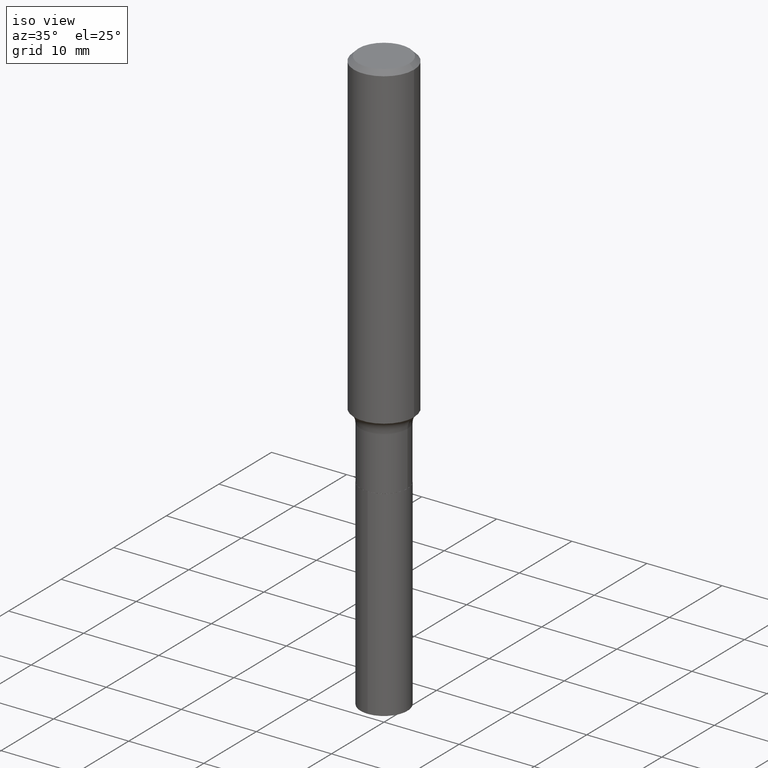
[diagram: clean part render]
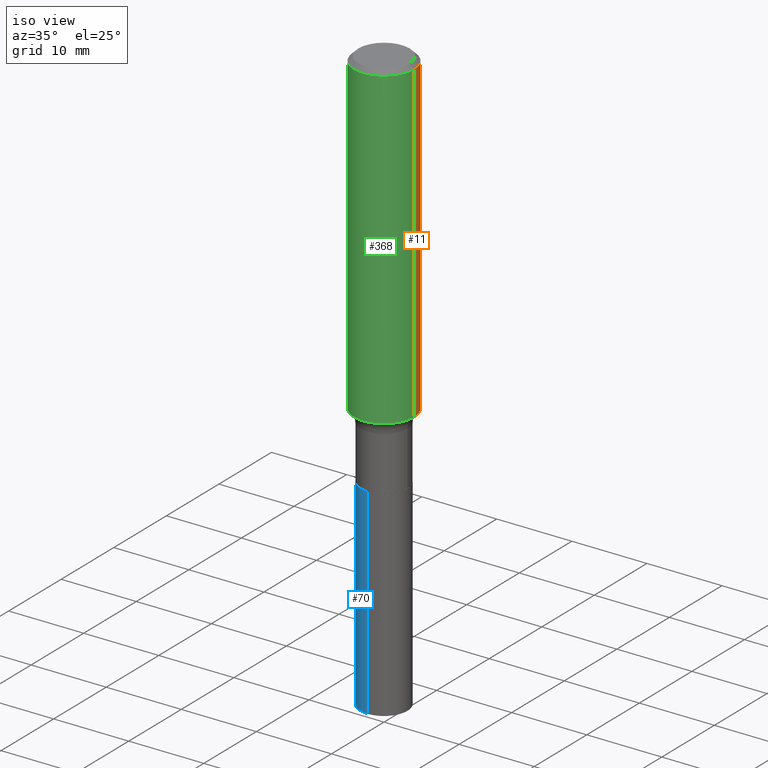
[diagram: same view with three faces highlighted in distinct colors, each labeled with its STEP entity id]
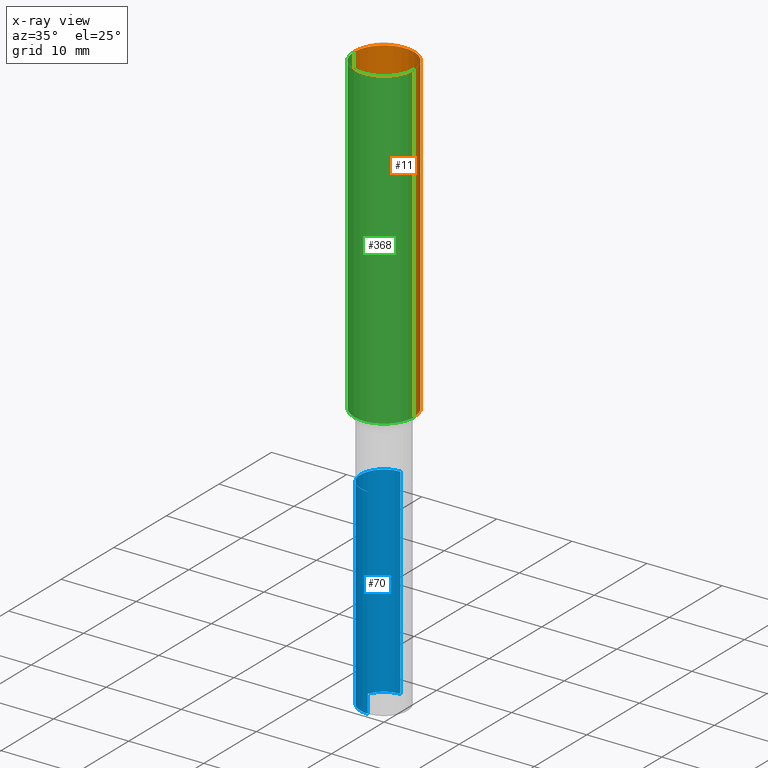
[diagram: x-ray of the same camera — body ghosted, the three highlighted faces saturated]
A machine part, iso view with three faces highlighted in distinct colors.
The next image is the same camera in x-ray (body ghosted, the three faces saturated) — at least one of them is partly hidden behind the body in this view.
Their STEP definitions:

[orange] entity #11 — the highlighted cylindrical surface (partial cylindrical patch) has radius 4.0005 mm, axis along (-0, 0, 1).
#3 = ORIENTED_EDGE ( 'NONE', *, *, #134, .F. ) ;
#5 = AXIS2_PLACEMENT_3D ( 'NONE', #199, #396, #386 ) ;
#11 = ADVANCED_FACE ( 'NONE', ( #363 ), #353, .T. ) ;
#12 = DIRECTION ( 'NONE',  ( 1.000000000000000000, -6.982962677686265922E-15, 0.000000000000000000 ) ) ;
#18 = AXIS2_PLACEMENT_3D ( 'NONE', #393, #194, #434 ) ;
#43 = VECTOR ( 'NONE', #391, 39.37007874015748143 ) ;
#57 = CARTESIAN_POINT ( 'NONE',  ( 0.1575000000000001676, -6.930555181286525277E-15, -1.669989896461217427 ) ) ;
#62 = ORIENTED_EDGE ( 'NONE', *, *, #259, .T. ) ;
#65 = VECTOR ( 'NONE', #302, 39.37007874015748143 ) ;
#66 = ORIENTED_EDGE ( 'NONE', *, *, #219, .T. ) ;
#81 = CARTESIAN_POINT ( 'NONE',  ( 4.083908198440252692E-29, -5.830738559550937008E-15, -1.669989896461217427 ) ) ;
#90 = CARTESIAN_POINT ( 'NONE',  ( -0.1575000000000000011, -1.837507594268394415E-15, -0.02362500000000012507 ) ) ;
#116 = VERTEX_POINT ( 'NONE', #448 ) ;
#134 = EDGE_CURVE ( 'NONE', #333, #222, #414, .T. ) ;
#146 = CARTESIAN_POINT ( 'NONE',  ( 0.1575000000000000844, -1.099816621735587677E-15, 7.679978421878603638E-30 ) ) ;
#148 = CIRCLE ( 'NONE', #485, 0.1575000000000001954 ) ;
#157 = CARTESIAN_POINT ( 'NONE',  ( -0.1575000000000000844, 1.119104808822158392E-15, -7.747322767151481189E-30 ) ) ;
#178 = EDGE_LOOP ( 'NONE', ( #62, #66, #190, #3 ) ) ;
#190 = ORIENTED_EDGE ( 'NONE', *, *, #480, .F. ) ;
#194 = DIRECTION ( 'NONE',  ( -2.445468806185136597E-29, 3.491481338843145583E-15, 1.000000000000000000 ) ) ;
#199 = CARTESIAN_POINT ( 'NONE',  ( 5.777420054612416725E-31, -8.248624663016976606E-17, -0.02362500000000012507 ) ) ;
#210 = LINE ( 'NONE', #157, #43 ) ;
#219 = EDGE_CURVE ( 'NONE', #116, #429, #210, .T. ) ;
#222 = VERTEX_POINT ( 'NONE', #404 ) ;
#234 = DIRECTION ( 'NONE',  ( -2.445468806185136597E-29, 3.491481338843145583E-15, 1.000000000000000000 ) ) ;
#259 = EDGE_CURVE ( 'NONE', #333, #116, #148, .T. ) ;
#302 = DIRECTION ( 'NONE',  ( -2.445468806185136877E-29, 3.491481338843145188E-15, 1.000000000000000000 ) ) ;
#333 = VERTEX_POINT ( 'NONE', #57 ) ;
#335 = CIRCLE ( 'NONE', #5, 0.1575000000000000011 ) ;
#353 = CYLINDRICAL_SURFACE ( 'NONE', #18, 0.1575000000000000844 ) ;
#363 = FACE_OUTER_BOUND ( 'NONE', #178, .T. ) ;
#386 = DIRECTION ( 'NONE',  ( 1.000000000000000000, -6.982962677686265922E-15, 0.000000000000000000 ) ) ;
#391 = DIRECTION ( 'NONE',  ( -2.445468806185136877E-29, 3.491481338843145188E-15, 1.000000000000000000 ) ) ;
#393 = CARTESIAN_POINT ( 'NONE',  ( 0.000000000000000000, 0.000000000000000000, 0.000000000000000000 ) ) ;
#396 = DIRECTION ( 'NONE',  ( -2.445468806185136597E-29, 3.491481338843145583E-15, 1.000000000000000000 ) ) ;
#404 = CARTESIAN_POINT ( 'NONE',  ( 0.1575000000000000011, -1.182302868365756679E-15, -0.02362500000000012507 ) ) ;
#414 = LINE ( 'NONE', #146, #65 ) ;
#429 = VERTEX_POINT ( 'NONE', #90 ) ;
#434 = DIRECTION ( 'NONE',  ( 1.000000000000000000, -6.982962677686267499E-15, 4.876176775795936353E-29 ) ) ;
#448 = CARTESIAN_POINT ( 'NONE',  ( -0.1575000000000001676, -4.711633750728779404E-15, -1.669989896461217427 ) ) ;
#480 = EDGE_CURVE ( 'NONE', #222, #429, #335, .T. ) ;
#485 = AXIS2_PLACEMENT_3D ( 'NONE', #81, #234, #12 ) ;

[blue] entity #70 — the highlighted cylindrical surface (edge-blend (fillet) strip) has radius 3.1255 mm, axis along (-0, 0, 1).
#4 = AXIS2_PLACEMENT_3D ( 'NONE', #321, #326, #135 ) ;
#23 = EDGE_CURVE ( 'NONE', #424, #284, #442, .T. ) ;
#52 = CIRCLE ( 'NONE', #399, 0.1230500000000000066 ) ;
#70 = ADVANCED_FACE ( 'NONE', ( #465 ), #129, .T. ) ;
#74 = ORIENTED_EDGE ( 'NONE', *, *, #211, .F. ) ;
#76 = CARTESIAN_POINT ( 'NONE',  ( 8.743228363528783660E-16, 0.1230499999999929567, -2.017700000000000937 ) ) ;
#94 = CARTESIAN_POINT ( 'NONE',  ( -8.592535574892198803E-16, -0.1230500000000107202, -3.071402484028441293 ) ) ;
#95 = DIRECTION ( 'NONE',  ( -6.982962677686266711E-15, -1.000000000000000000, 4.440224288767595162E-15 ) ) ;
#97 = VECTOR ( 'NONE', #297, 39.37007874015748143 ) ;
#108 = EDGE_CURVE ( 'NONE', #424, #161, #478, .T. ) ;
#129 = CYLINDRICAL_SURFACE ( 'NONE', #4, 0.1230500000000000066 ) ;
#131 = VERTEX_POINT ( 'NONE', #482 ) ;
#135 = DIRECTION ( 'NONE',  ( -6.982962677686266711E-15, -1.000000000000000000, 4.440224288767595162E-15 ) ) ;
#151 = CARTESIAN_POINT ( 'NONE',  ( 4.934222410239750967E-29, -7.044761897383814758E-15, -2.017700000000000049 ) ) ;
#155 = LINE ( 'NONE', #308, #203 ) ;
#161 = VERTEX_POINT ( 'NONE', #76 ) ;
#203 = VECTOR ( 'NONE', #458, 39.37007874015748143 ) ;
#204 = DIRECTION ( 'NONE',  ( -2.445762720344131298E-29, 3.491060437038909906E-15, 1.000000000000000000 ) ) ;
#206 = EDGE_LOOP ( 'NONE', ( #359, #279, #464, #74 ) ) ;
#211 = EDGE_CURVE ( 'NONE', #161, #131, #52, .T. ) ;
#229 = EDGE_CURVE ( 'NONE', #284, #131, #155, .T. ) ;
#267 = CARTESIAN_POINT ( 'NONE',  ( 8.743228363528525308E-16, 0.1230499999999929567, -2.017700000000000937 ) ) ;
#279 = ORIENTED_EDGE ( 'NONE', *, *, #23, .T. ) ;
#284 = VERTEX_POINT ( 'NONE', #94 ) ;
#297 = DIRECTION ( 'NONE',  ( -2.445762720344131298E-29, 3.491060437038910301E-15, 1.000000000000000000 ) ) ;
#308 = CARTESIAN_POINT ( 'NONE',  ( -8.592535574892457155E-16, -0.1230500000000070565, -2.017699999999999605 ) ) ;
#315 = CARTESIAN_POINT ( 'NONE',  ( 8.743228363528783660E-16, 0.1230499999999892652, -3.071402484028442181 ) ) ;
#321 = CARTESIAN_POINT ( 'NONE',  ( 4.934222410239750967E-29, -7.044761897383814758E-15, -2.017700000000000049 ) ) ;
#326 = DIRECTION ( 'NONE',  ( -2.445762720344131298E-29, 3.491060437038909906E-15, 1.000000000000000000 ) ) ;
#359 = ORIENTED_EDGE ( 'NONE', *, *, #108, .F. ) ;
#361 = DIRECTION ( 'NONE',  ( -6.982962677686266711E-15, -1.000000000000000000, 4.440224288767595162E-15 ) ) ;
#387 = AXIS2_PLACEMENT_3D ( 'NONE', #437, #204, #361 ) ;
#399 = AXIS2_PLACEMENT_3D ( 'NONE', #151, #438, #95 ) ;
#424 = VERTEX_POINT ( 'NONE', #315 ) ;
#437 = CARTESIAN_POINT ( 'NONE',  ( 7.511328664010520263E-29, -1.072330095178513026E-14, -3.071402484028441737 ) ) ;
#438 = DIRECTION ( 'NONE',  ( -2.445762720344131298E-29, 3.491060437038909906E-15, 1.000000000000000000 ) ) ;
#442 = CIRCLE ( 'NONE', #387, 0.1230500000000000066 ) ;
#458 = DIRECTION ( 'NONE',  ( -2.445762720344131298E-29, 3.491060437038910301E-15, 1.000000000000000000 ) ) ;
#464 = ORIENTED_EDGE ( 'NONE', *, *, #229, .T. ) ;
#465 = FACE_OUTER_BOUND ( 'NONE', #206, .T. ) ;
#478 = LINE ( 'NONE', #267, #97 ) ;
#482 = CARTESIAN_POINT ( 'NONE',  ( -8.592535574892457155E-16, -0.1230500000000070565, -2.017699999999999605 ) ) ;

[green] entity #368 — the highlighted cylindrical surface (partial cylindrical patch) has radius 4.0005 mm, axis along (-0, 0, 1).
#25 = ORIENTED_EDGE ( 'NONE', *, *, #254, .F. ) ;
#34 = AXIS2_PLACEMENT_3D ( 'NONE', #248, #469, #39 ) ;
#39 = DIRECTION ( 'NONE',  ( 1.000000000000000000, -6.982962677686265922E-15, 0.000000000000000000 ) ) ;
#43 = VECTOR ( 'NONE', #391, 39.37007874015748143 ) ;
#49 = ORIENTED_EDGE ( 'NONE', *, *, #278, .T. ) ;
#57 = CARTESIAN_POINT ( 'NONE',  ( 0.1575000000000001676, -6.930555181286525277E-15, -1.669989896461217427 ) ) ;
#65 = VECTOR ( 'NONE', #302, 39.37007874015748143 ) ;
#71 = ORIENTED_EDGE ( 'NONE', *, *, #219, .F. ) ;
#90 = CARTESIAN_POINT ( 'NONE',  ( -0.1575000000000000011, -1.837507594268394415E-15, -0.02362500000000012507 ) ) ;
#101 = CIRCLE ( 'NONE', #167, 0.1575000000000000011 ) ;
#102 = CARTESIAN_POINT ( 'NONE',  ( 0.000000000000000000, 0.000000000000000000, 0.000000000000000000 ) ) ;
#107 = CYLINDRICAL_SURFACE ( 'NONE', #388, 0.1575000000000000844 ) ;
#116 = VERTEX_POINT ( 'NONE', #448 ) ;
#119 = CARTESIAN_POINT ( 'NONE',  ( 5.777420054612416725E-31, -8.248624663016976606E-17, -0.02362500000000012507 ) ) ;
#134 = EDGE_CURVE ( 'NONE', #333, #222, #414, .T. ) ;
#146 = CARTESIAN_POINT ( 'NONE',  ( 0.1575000000000000844, -1.099816621735587677E-15, 7.679978421878603638E-30 ) ) ;
#157 = CARTESIAN_POINT ( 'NONE',  ( -0.1575000000000000844, 1.119104808822158392E-15, -7.747322767151481189E-30 ) ) ;
#167 = AXIS2_PLACEMENT_3D ( 'NONE', #119, #271, #428 ) ;
#210 = LINE ( 'NONE', #157, #43 ) ;
#219 = EDGE_CURVE ( 'NONE', #116, #429, #210, .T. ) ;
#222 = VERTEX_POINT ( 'NONE', #404 ) ;
#248 = CARTESIAN_POINT ( 'NONE',  ( 4.083908198440252692E-29, -5.830738559550937008E-15, -1.669989896461217427 ) ) ;
#254 = EDGE_CURVE ( 'NONE', #429, #222, #101, .T. ) ;
#263 = CIRCLE ( 'NONE', #34, 0.1575000000000001954 ) ;
#271 = DIRECTION ( 'NONE',  ( -2.445468806185136597E-29, 3.491481338843145583E-15, 1.000000000000000000 ) ) ;
#278 = EDGE_CURVE ( 'NONE', #116, #333, #263, .T. ) ;
#293 = FACE_OUTER_BOUND ( 'NONE', #453, .T. ) ;
#302 = DIRECTION ( 'NONE',  ( -2.445468806185136877E-29, 3.491481338843145188E-15, 1.000000000000000000 ) ) ;
#333 = VERTEX_POINT ( 'NONE', #57 ) ;
#368 = ADVANCED_FACE ( 'NONE', ( #293 ), #107, .T. ) ;
#374 = DIRECTION ( 'NONE',  ( 1.000000000000000000, -6.982962677686267499E-15, 4.876176775795936353E-29 ) ) ;
#388 = AXIS2_PLACEMENT_3D ( 'NONE', #102, #416, #374 ) ;
#391 = DIRECTION ( 'NONE',  ( -2.445468806185136877E-29, 3.491481338843145188E-15, 1.000000000000000000 ) ) ;
#404 = CARTESIAN_POINT ( 'NONE',  ( 0.1575000000000000011, -1.182302868365756679E-15, -0.02362500000000012507 ) ) ;
#414 = LINE ( 'NONE', #146, #65 ) ;
#416 = DIRECTION ( 'NONE',  ( -2.445468806185136597E-29, 3.491481338843145583E-15, 1.000000000000000000 ) ) ;
#428 = DIRECTION ( 'NONE',  ( 1.000000000000000000, -6.982962677686265922E-15, 0.000000000000000000 ) ) ;
#429 = VERTEX_POINT ( 'NONE', #90 ) ;
#447 = ORIENTED_EDGE ( 'NONE', *, *, #134, .T. ) ;
#448 = CARTESIAN_POINT ( 'NONE',  ( -0.1575000000000001676, -4.711633750728779404E-15, -1.669989896461217427 ) ) ;
#453 = EDGE_LOOP ( 'NONE', ( #71, #49, #447, #25 ) ) ;
#469 = DIRECTION ( 'NONE',  ( -2.445468806185136597E-29, 3.491481338843145583E-15, 1.000000000000000000 ) ) ;